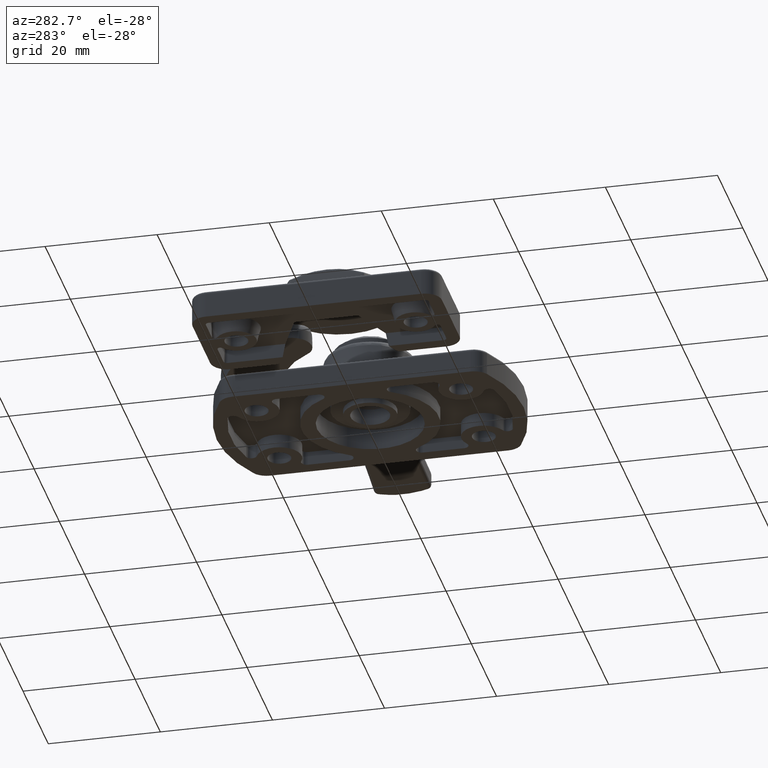
[diagram: clean part render]
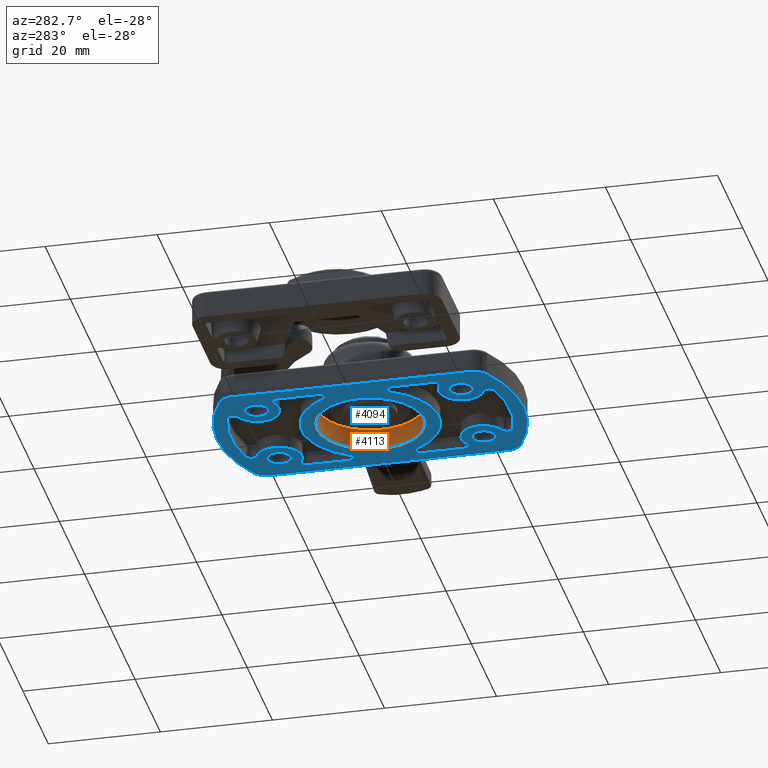
[diagram: same view with the hole feature highlighted: cylindrical wall and planar end face, labeled with their STEP entity ids]
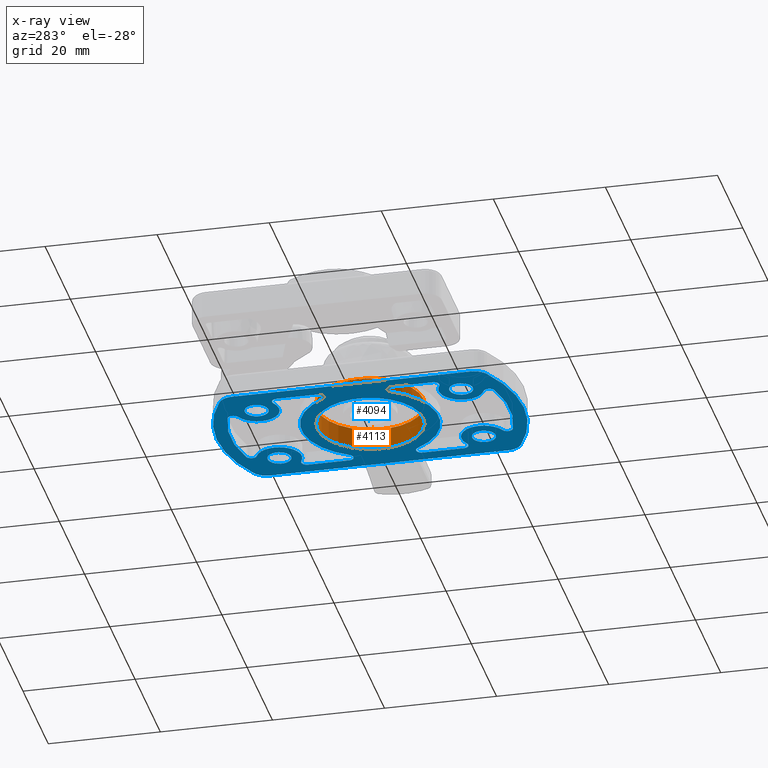
[diagram: x-ray of the same camera — body ghosted, the hole faces saturated]
A machine part, auxiliary view. The highlighted faces form one hole feature of diameter 19 mm: the cylindrical wall (entity #4113, orange) and its adjacent planar end face (entity #4094, blue) — they share a circular edge in the B-rep.
The next image is the same camera in x-ray (body ghosted, the hole faces saturated) — the bore reads through the body.
Wall:
#857=CYLINDRICAL_SURFACE('',#4442,9.5);
#945=FACE_BOUND('',#1296,.T.);
#1020=FACE_OUTER_BOUND('',#1295,.T.);
#1295=EDGE_LOOP('',(#2976));
#1296=EDGE_LOOP('',(#2977));
#1625=CIRCLE('',#4407,9.5);
#1642=CIRCLE('',#4443,9.5);
#1889=VERTEX_POINT('',#6166);
#1915=VERTEX_POINT('',#6255);
#2290=EDGE_CURVE('',#1889,#1889,#1625,.T.);
#2334=EDGE_CURVE('',#1915,#1915,#1642,.T.);
#2976=ORIENTED_EDGE('',*,*,#2290,.F.);
#2977=ORIENTED_EDGE('',*,*,#2334,.F.);
#4113=ADVANCED_FACE('',(#1020,#945),#857,.F.);
#4407=AXIS2_PLACEMENT_3D('',#6167,#4975,#4976);
#4442=AXIS2_PLACEMENT_3D('',#6254,#5072,#5073);
#4443=AXIS2_PLACEMENT_3D('',#6256,#5074,#5075);
#4975=DIRECTION('center_axis',(0.,0.,-1.));
#4976=DIRECTION('ref_axis',(1.,0.,0.));
#5072=DIRECTION('center_axis',(0.,0.,1.));
#5073=DIRECTION('ref_axis',(1.,0.,0.));
#5074=DIRECTION('center_axis',(0.,0.,1.));
#5075=DIRECTION('ref_axis',(1.,0.,0.));
#6166=CARTESIAN_POINT('',(-9.5,-1.16341445918999E-15,0.));
#6167=CARTESIAN_POINT('Origin',(1.11022302462516E-15,0.,0.));
#6254=CARTESIAN_POINT('Origin',(1.11022302462516E-15,0.,-1.9));
#6255=CARTESIAN_POINT('',(-9.5,-1.16341445918999E-15,-3.8));
#6256=CARTESIAN_POINT('Origin',(1.11022302462516E-15,0.,-3.8));
End face:
#446=PLANE('',#4378);
#503=LINE('',#6102,#675);
#504=LINE('',#6109,#676);
#505=LINE('',#6122,#677);
#506=LINE('',#6130,#678);
#507=LINE('',#6146,#679);
#508=LINE('',#6162,#680);
#675=VECTOR('',#4915,42.4904697731117);
#676=VECTOR('',#4922,42.4904697731241);
#677=VECTOR('',#4933,7.33863582406045);
#678=VECTOR('',#4940,7.33865921112837);
#679=VECTOR('',#4955,7.33860519076818);
#680=VECTOR('',#4970,7.33867283618418);
#938=FACE_BOUND('',#1270,.T.);
#939=FACE_BOUND('',#1271,.T.);
#940=FACE_BOUND('',#1272,.T.);
#941=FACE_BOUND('',#1273,.T.);
#942=FACE_BOUND('',#1274,.T.);
#943=FACE_BOUND('',#1275,.T.);
#944=FACE_BOUND('',#1276,.T.);
#1001=FACE_OUTER_BOUND('',#1269,.T.);
#1269=EDGE_LOOP('',(#2867,#2868,#2869,#2870,#2871,#2872,#2873,#2874));
#1270=EDGE_LOOP('',(#2875));
#1271=EDGE_LOOP('',(#2876));
#1272=EDGE_LOOP('',(#2877));
#1273=EDGE_LOOP('',(#2878));
#1274=EDGE_LOOP('',(#2879,#2880,#2881,#2882,#2883,#2884,#2885,#2886,#2887,
#2888,#2889,#2890));
#1275=EDGE_LOOP('',(#2891,#2892,#2893,#2894,#2895,#2896,#2897,#2898,#2899,
#2900,#2901,#2902));
#1276=EDGE_LOOP('',(#2903));
#1592=CIRCLE('',#4372,27.4);
#1595=CIRCLE('',#4376,3.000000486);
#1597=CIRCLE('',#4379,2.9999904);
#1598=CIRCLE('',#4380,3.00000879);
#1599=CIRCLE('',#4381,27.4);
#1600=CIRCLE('',#4382,2.999998704);
#1601=CIRCLE('',#4383,2.1);
#1602=CIRCLE('',#4384,2.1);
#1603=CIRCLE('',#4385,2.1);
#1604=CIRCLE('',#4386,2.1);
#1605=CIRCLE('',#4387,0.999999740999999);
#1606=CIRCLE('',#4388,1.000004735);
#1607=CIRCLE('',#4389,12.25);
#1608=CIRCLE('',#4390,0.999998045);
#1609=CIRCLE('',#4391,0.999999426999999);
#1610=CIRCLE('',#4392,4.);
#1611=CIRCLE('',#4393,1.);
#1612=CIRCLE('',#4394,24.9);
#1613=CIRCLE('',#4395,1.);
#1614=CIRCLE('',#4396,4.);
#1615=CIRCLE('',#4397,1.000004735);
#1616=CIRCLE('',#4398,1.00002627);
#1617=CIRCLE('',#4399,4.);
#1618=CIRCLE('',#4400,0.99999999999999);
#1619=CIRCLE('',#4401,24.9);
#1620=CIRCLE('',#4402,0.99999999999999);
#1621=CIRCLE('',#4403,4.);
#1622=CIRCLE('',#4404,0.999985021999997);
#1623=CIRCLE('',#4405,0.999998045);
#1624=CIRCLE('',#4406,12.25);
#1625=CIRCLE('',#4407,9.5);
#1849=VERTEX_POINT('',#6082);
#1850=VERTEX_POINT('',#6083);
#1854=VERTEX_POINT('',#6093);
#1856=VERTEX_POINT('',#6099);
#1857=VERTEX_POINT('',#6101);
#1858=VERTEX_POINT('',#6103);
#1859=VERTEX_POINT('',#6105);
#1860=VERTEX_POINT('',#6107);
#1861=VERTEX_POINT('',#6110);
#1862=VERTEX_POINT('',#6112);
#1863=VERTEX_POINT('',#6114);
#1864=VERTEX_POINT('',#6116);
#1865=VERTEX_POINT('',#6118);
#1866=VERTEX_POINT('',#6119);
#1867=VERTEX_POINT('',#6121);
#1868=VERTEX_POINT('',#6123);
#1869=VERTEX_POINT('',#6125);
#1870=VERTEX_POINT('',#6127);
#1871=VERTEX_POINT('',#6129);
#1872=VERTEX_POINT('',#6131);
#1873=VERTEX_POINT('',#6133);
#1874=VERTEX_POINT('',#6135);
#1875=VERTEX_POINT('',#6137);
#1876=VERTEX_POINT('',#6139);
#1877=VERTEX_POINT('',#6142);
#1878=VERTEX_POINT('',#6143);
#1879=VERTEX_POINT('',#6145);
#1880=VERTEX_POINT('',#6147);
#1881=VERTEX_POINT('',#6149);
#1882=VERTEX_POINT('',#6151);
#1883=VERTEX_POINT('',#6153);
#1884=VERTEX_POINT('',#6155);
#1885=VERTEX_POINT('',#6157);
#1886=VERTEX_POINT('',#6159);
#1887=VERTEX_POINT('',#6161);
#1888=VERTEX_POINT('',#6163);
#1889=VERTEX_POINT('',#6166);
#2248=EDGE_CURVE('',#1849,#1850,#1592,.T.);
#2253=EDGE_CURVE('',#1850,#1854,#1595,.T.);
#2256=EDGE_CURVE('',#1849,#1856,#1597,.T.);
#2257=EDGE_CURVE('',#1856,#1857,#503,.T.);
#2258=EDGE_CURVE('',#1857,#1858,#1598,.T.);
#2259=EDGE_CURVE('',#1858,#1859,#1599,.T.);
#2260=EDGE_CURVE('',#1859,#1860,#1600,.T.);
#2261=EDGE_CURVE('',#1860,#1854,#504,.T.);
#2262=EDGE_CURVE('',#1861,#1861,#1601,.T.);
#2263=EDGE_CURVE('',#1862,#1862,#1602,.T.);
#2264=EDGE_CURVE('',#1863,#1863,#1603,.T.);
#2265=EDGE_CURVE('',#1864,#1864,#1604,.T.);
#2266=EDGE_CURVE('',#1865,#1866,#1605,.T.);
#2267=EDGE_CURVE('',#1866,#1867,#505,.T.);
#2268=EDGE_CURVE('',#1867,#1868,#1606,.T.);
#2269=EDGE_CURVE('',#1868,#1869,#1607,.T.);
#2270=EDGE_CURVE('',#1869,#1870,#1608,.T.);
#2271=EDGE_CURVE('',#1870,#1871,#506,.T.);
#2272=EDGE_CURVE('',#1871,#1872,#1609,.T.);
#2273=EDGE_CURVE('',#1872,#1873,#1610,.T.);
#2274=EDGE_CURVE('',#1873,#1874,#1611,.T.);
#2275=EDGE_CURVE('',#1874,#1875,#1612,.T.);
#2276=EDGE_CURVE('',#1875,#1876,#1613,.T.);
#2277=EDGE_CURVE('',#1876,#1865,#1614,.T.);
#2278=EDGE_CURVE('',#1877,#1878,#1615,.T.);
#2279=EDGE_CURVE('',#1878,#1879,#507,.T.);
#2280=EDGE_CURVE('',#1879,#1880,#1616,.T.);
#2281=EDGE_CURVE('',#1880,#1881,#1617,.T.);
#2282=EDGE_CURVE('',#1881,#1882,#1618,.T.);
#2283=EDGE_CURVE('',#1882,#1883,#1619,.T.);
#2284=EDGE_CURVE('',#1883,#1884,#1620,.T.);
#2285=EDGE_CURVE('',#1884,#1885,#1621,.T.);
#2286=EDGE_CURVE('',#1885,#1886,#1622,.T.);
#2287=EDGE_CURVE('',#1886,#1887,#508,.T.);
#2288=EDGE_CURVE('',#1887,#1888,#1623,.T.);
#2289=EDGE_CURVE('',#1888,#1877,#1624,.T.);
#2290=EDGE_CURVE('',#1889,#1889,#1625,.T.);
#2867=ORIENTED_EDGE('',*,*,#2256,.T.);
#2868=ORIENTED_EDGE('',*,*,#2257,.T.);
#2869=ORIENTED_EDGE('',*,*,#2258,.T.);
#2870=ORIENTED_EDGE('',*,*,#2259,.T.);
#2871=ORIENTED_EDGE('',*,*,#2260,.T.);
#2872=ORIENTED_EDGE('',*,*,#2261,.T.);
#2873=ORIENTED_EDGE('',*,*,#2253,.F.);
#2874=ORIENTED_EDGE('',*,*,#2248,.F.);
#2875=ORIENTED_EDGE('',*,*,#2262,.T.);
#2876=ORIENTED_EDGE('',*,*,#2263,.T.);
#2877=ORIENTED_EDGE('',*,*,#2264,.T.);
#2878=ORIENTED_EDGE('',*,*,#2265,.T.);
#2879=ORIENTED_EDGE('',*,*,#2266,.T.);
#2880=ORIENTED_EDGE('',*,*,#2267,.T.);
#2881=ORIENTED_EDGE('',*,*,#2268,.T.);
#2882=ORIENTED_EDGE('',*,*,#2269,.T.);
#2883=ORIENTED_EDGE('',*,*,#2270,.T.);
#2884=ORIENTED_EDGE('',*,*,#2271,.T.);
#2885=ORIENTED_EDGE('',*,*,#2272,.T.);
#2886=ORIENTED_EDGE('',*,*,#2273,.T.);
#2887=ORIENTED_EDGE('',*,*,#2274,.T.);
#2888=ORIENTED_EDGE('',*,*,#2275,.T.);
#2889=ORIENTED_EDGE('',*,*,#2276,.T.);
#2890=ORIENTED_EDGE('',*,*,#2277,.T.);
#2891=ORIENTED_EDGE('',*,*,#2278,.T.);
#2892=ORIENTED_EDGE('',*,*,#2279,.T.);
#2893=ORIENTED_EDGE('',*,*,#2280,.T.);
#2894=ORIENTED_EDGE('',*,*,#2281,.T.);
#2895=ORIENTED_EDGE('',*,*,#2282,.T.);
#2896=ORIENTED_EDGE('',*,*,#2283,.T.);
#2897=ORIENTED_EDGE('',*,*,#2284,.T.);
#2898=ORIENTED_EDGE('',*,*,#2285,.T.);
#2899=ORIENTED_EDGE('',*,*,#2286,.T.);
#2900=ORIENTED_EDGE('',*,*,#2287,.T.);
#2901=ORIENTED_EDGE('',*,*,#2288,.T.);
#2902=ORIENTED_EDGE('',*,*,#2289,.T.);
#2903=ORIENTED_EDGE('',*,*,#2290,.T.);
#4094=ADVANCED_FACE('',(#1001,#938,#939,#940,#941,#942,#943,#944),#446,
 .T.);
#4372=AXIS2_PLACEMENT_3D('',#6084,#4896,#4897);
#4376=AXIS2_PLACEMENT_3D('',#6094,#4906,#4907);
#4378=AXIS2_PLACEMENT_3D('',#6098,#4911,#4912);
#4379=AXIS2_PLACEMENT_3D('',#6100,#4913,#4914);
#4380=AXIS2_PLACEMENT_3D('',#6104,#4916,#4917);
#4381=AXIS2_PLACEMENT_3D('',#6106,#4918,#4919);
#4382=AXIS2_PLACEMENT_3D('',#6108,#4920,#4921);
#4383=AXIS2_PLACEMENT_3D('',#6111,#4923,#4924);
#4384=AXIS2_PLACEMENT_3D('',#6113,#4925,#4926);
#4385=AXIS2_PLACEMENT_3D('',#6115,#4927,#4928);
#4386=AXIS2_PLACEMENT_3D('',#6117,#4929,#4930);
#4387=AXIS2_PLACEMENT_3D('',#6120,#4931,#4932);
#4388=AXIS2_PLACEMENT_3D('',#6124,#4934,#4935);
#4389=AXIS2_PLACEMENT_3D('',#6126,#4936,#4937);
#4390=AXIS2_PLACEMENT_3D('',#6128,#4938,#4939);
#4391=AXIS2_PLACEMENT_3D('',#6132,#4941,#4942);
#4392=AXIS2_PLACEMENT_3D('',#6134,#4943,#4944);
#4393=AXIS2_PLACEMENT_3D('',#6136,#4945,#4946);
#4394=AXIS2_PLACEMENT_3D('',#6138,#4947,#4948);
#4395=AXIS2_PLACEMENT_3D('',#6140,#4949,#4950);
#4396=AXIS2_PLACEMENT_3D('',#6141,#4951,#4952);
#4397=AXIS2_PLACEMENT_3D('',#6144,#4953,#4954);
#4398=AXIS2_PLACEMENT_3D('',#6148,#4956,#4957);
#4399=AXIS2_PLACEMENT_3D('',#6150,#4958,#4959);
#4400=AXIS2_PLACEMENT_3D('',#6152,#4960,#4961);
#4401=AXIS2_PLACEMENT_3D('',#6154,#4962,#4963);
#4402=AXIS2_PLACEMENT_3D('',#6156,#4964,#4965);
#4403=AXIS2_PLACEMENT_3D('',#6158,#4966,#4967);
#4404=AXIS2_PLACEMENT_3D('',#6160,#4968,#4969);
#4405=AXIS2_PLACEMENT_3D('',#6164,#4971,#4972);
#4406=AXIS2_PLACEMENT_3D('',#6165,#4973,#4974);
#4407=AXIS2_PLACEMENT_3D('',#6167,#4975,#4976);
#4896=DIRECTION('center_axis',(0.,0.,-1.));
#4897=DIRECTION('ref_axis',(1.,0.,0.));
#4906=DIRECTION('center_axis',(0.,0.,-1.));
#4907=DIRECTION('ref_axis',(1.,1.15648212996777E-15,0.));
#4911=DIRECTION('center_axis',(0.,0.,1.));
#4912=DIRECTION('ref_axis',(1.,0.,0.));
#4913=DIRECTION('center_axis',(0.,0.,1.));
#4914=DIRECTION('ref_axis',(1.,0.,0.));
#4915=DIRECTION('',(-1.,0.,0.));
#4916=DIRECTION('center_axis',(0.,0.,1.));
#4917=DIRECTION('ref_axis',(1.,0.,0.));
#4918=DIRECTION('center_axis',(0.,0.,1.));
#4919=DIRECTION('ref_axis',(1.,0.,0.));
#4920=DIRECTION('center_axis',(0.,0.,1.));
#4921=DIRECTION('ref_axis',(1.,0.,0.));
#4922=DIRECTION('',(1.,0.,0.));
#4923=DIRECTION('center_axis',(0.,0.,-1.));
#4924=DIRECTION('ref_axis',(1.,0.,0.));
#4925=DIRECTION('center_axis',(0.,0.,-1.));
#4926=DIRECTION('ref_axis',(1.,0.,0.));
#4927=DIRECTION('center_axis',(0.,0.,-1.));
#4928=DIRECTION('ref_axis',(1.,8.26058798084193E-16,0.));
#4929=DIRECTION('center_axis',(0.,0.,-1.));
#4930=DIRECTION('ref_axis',(1.,0.,0.));
#4931=DIRECTION('center_axis',(0.,0.,-1.));
#4932=DIRECTION('ref_axis',(1.,0.,0.));
#4933=DIRECTION('',(-1.,0.,0.));
#4934=DIRECTION('center_axis',(0.,0.,-1.));
#4935=DIRECTION('ref_axis',(1.,0.,0.));
#4936=DIRECTION('center_axis',(0.,0.,1.));
#4937=DIRECTION('ref_axis',(1.,0.,0.));
#4938=DIRECTION('center_axis',(0.,0.,-1.));
#4939=DIRECTION('ref_axis',(1.,1.73472686736783E-15,0.));
#4940=DIRECTION('',(1.,0.,0.));
#4941=DIRECTION('center_axis',(0.,0.,-1.));
#4942=DIRECTION('ref_axis',(1.,1.73472446997393E-15,0.));
#4943=DIRECTION('center_axis',(0.,0.,1.));
#4944=DIRECTION('ref_axis',(1.,0.,0.));
#4945=DIRECTION('center_axis',(0.,0.,-1.));
#4946=DIRECTION('ref_axis',(1.,-3.46944695195361E-15,0.));
#4947=DIRECTION('center_axis',(0.,0.,-1.));
#4948=DIRECTION('ref_axis',(1.,-4.44089209850063E-15,0.));
#4949=DIRECTION('center_axis',(0.,0.,-1.));
#4950=DIRECTION('ref_axis',(1.,8.67361737988403E-16,0.));
#4951=DIRECTION('center_axis',(0.,0.,1.));
#4952=DIRECTION('ref_axis',(1.,0.,0.));
#4953=DIRECTION('center_axis',(0.,0.,-1.));
#4954=DIRECTION('ref_axis',(1.,0.,0.));
#4955=DIRECTION('',(-1.,0.,0.));
#4956=DIRECTION('center_axis',(0.,0.,-1.));
#4957=DIRECTION('ref_axis',(1.,0.,0.));
#4958=DIRECTION('center_axis',(0.,0.,1.));
#4959=DIRECTION('ref_axis',(1.,0.,0.));
#4960=DIRECTION('center_axis',(0.,0.,-1.));
#4961=DIRECTION('ref_axis',(1.,1.73472347597682E-15,0.));
#4962=DIRECTION('center_axis',(0.,0.,-1.));
#4963=DIRECTION('ref_axis',(1.,2.66453525910037E-15,0.));
#4964=DIRECTION('center_axis',(0.,0.,-1.));
#4965=DIRECTION('ref_axis',(1.,0.,0.));
#4966=DIRECTION('center_axis',(0.,0.,1.));
#4967=DIRECTION('ref_axis',(1.,0.,0.));
#4968=DIRECTION('center_axis',(0.,0.,-1.));
#4969=DIRECTION('ref_axis',(1.,3.46949891810842E-15,0.));
#4970=DIRECTION('',(1.,0.,0.));
#4971=DIRECTION('center_axis',(0.,0.,-1.));
#4972=DIRECTION('ref_axis',(1.,-3.46945373473567E-15,0.));
#4973=DIRECTION('center_axis',(0.,0.,1.));
#4974=DIRECTION('ref_axis',(1.,0.,0.));
#4975=DIRECTION('center_axis',(0.,0.,-1.));
#4976=DIRECTION('ref_axis',(1.,0.,0.));
#6082=CARTESIAN_POINT('',(23.8573546038228,13.475408391136,0.));
#6083=CARTESIAN_POINT('',(23.8573537468265,-13.4754099082799,0.));
#6084=CARTESIAN_POINT('Origin',(0.,0.,0.));
#6093=CARTESIAN_POINT('',(21.2452346062224,-14.9999999998251,0.));
#6094=CARTESIAN_POINT('Origin',(21.245234476,-11.999999514,0.));
#6098=CARTESIAN_POINT('Origin',(0.,-15.,0.));
#6099=CARTESIAN_POINT('',(21.2452377673179,14.9999999998591,0.));
#6100=CARTESIAN_POINT('Origin',(21.245240363,12.0000096,0.));
#6101=CARTESIAN_POINT('',(-21.2452320057937,14.9999999998591,0.));
#6102=CARTESIAN_POINT('',(0.,14.9999999995783,0.));
#6103=CARTESIAN_POINT('',(-23.8573530408037,13.4754111586653,0.));
#6104=CARTESIAN_POINT('Origin',(-21.24522963,11.99999121,0.));
#6105=CARTESIAN_POINT('',(-23.8573538977819,-13.4754096420087,0.));
#6106=CARTESIAN_POINT('Origin',(0.,0.,0.));
#6107=CARTESIAN_POINT('',(-21.2452351669017,-14.9999999998251,0.));
#6108=CARTESIAN_POINT('Origin',(-21.245235517,-12.000001296,0.));
#6109=CARTESIAN_POINT('',(0.,-14.9999999994753,0.));
#6110=CARTESIAN_POINT('',(-20.35,-8.99999999999999,0.));
#6111=CARTESIAN_POINT('Origin',(-18.25,-9.,0.));
#6112=CARTESIAN_POINT('',(16.15,-9.00000000000001,0.));
#6113=CARTESIAN_POINT('Origin',(18.25,-9.,0.));
#6114=CARTESIAN_POINT('',(16.15,9.,-1.38777878078145E-16));
#6115=CARTESIAN_POINT('Origin',(18.25,9.,0.));
#6116=CARTESIAN_POINT('',(-20.35,9.,-1.38777878078145E-16));
#6117=CARTESIAN_POINT('Origin',(-18.25,9.,0.));
#6118=CARTESIAN_POINT('',(14.7858984454705,-11.0000001047913,0.));
#6119=CARTESIAN_POINT('',(13.9198732822919,-12.5000000003024,0.));
#6120=CARTESIAN_POINT('Origin',(13.91987343,-11.500000259,0.));
#6121=CARTESIAN_POINT('',(6.58123745823149,-12.5000000003002,0.));
#6122=CARTESIAN_POINT('',(0.,-12.5000000009073,0.));
#6123=CARTESIAN_POINT('',(6.08453706019287,-10.6320698248216,0.));
#6124=CARTESIAN_POINT('Origin',(6.581241097,-11.499995265,0.));
#6125=CARTESIAN_POINT('',(6.08452311903823,10.6320778034687,0.));
#6126=CARTESIAN_POINT('Origin',(0.,0.,0.));
#6127=CARTESIAN_POINT('',(6.58121443314716,12.4999999999329,0.));
#6128=CARTESIAN_POINT('Origin',(6.581215939,11.500001955,0.));
#6129=CARTESIAN_POINT('',(13.9198736442755,12.4999999999332,0.));
#6130=CARTESIAN_POINT('',(0.,12.4999999997997,0.));
#6131=CARTESIAN_POINT('',(14.7858985176259,11.0000002296897,0.));
#6132=CARTESIAN_POINT('Origin',(13.919873974,11.500000573,0.));
#6133=CARTESIAN_POINT('',(21.9251143391176,7.42090703419241,0.));
#6134=CARTESIAN_POINT('Origin',(18.25,9.,0.));
#6135=CARTESIAN_POINT('',(23.7997043434503,7.32011428629029,0.));
#6136=CARTESIAN_POINT('Origin',(22.843892924,7.026133793,0.));
#6137=CARTESIAN_POINT('',(23.7997043434566,-7.32011428629221,0.));
#6138=CARTESIAN_POINT('Origin',(0.,0.,0.));
#6139=CARTESIAN_POINT('',(21.9251143392114,-7.42090703445033,0.));
#6140=CARTESIAN_POINT('Origin',(22.843892924,-7.026133793,0.));
#6141=CARTESIAN_POINT('Origin',(18.25,-9.,0.));
#6142=CARTESIAN_POINT('',(-6.0845370597838,-10.6320698250557,0.));
#6143=CARTESIAN_POINT('',(-6.58123745723182,-12.5000000000527,0.));
#6144=CARTESIAN_POINT('Origin',(-6.581241097,-11.499995265,0.));
#6145=CARTESIAN_POINT('',(-13.919842648,-12.4999999999837,0.));
#6146=CARTESIAN_POINT('',(0.,-12.5000000001647,0.));
#6147=CARTESIAN_POINT('',(-14.7858923179831,-10.9999894924847,0.));
#6148=CARTESIAN_POINT('Origin',(-13.91982748,-11.49997373,0.));
#6149=CARTESIAN_POINT('',(-21.9251143391176,-7.42090703419241,0.));
#6150=CARTESIAN_POINT('Origin',(-18.25,-9.,0.));
#6151=CARTESIAN_POINT('',(-23.7997043434503,-7.32011428629028,0.));
#6152=CARTESIAN_POINT('Origin',(-22.843892924,-7.026133793,0.));
#6153=CARTESIAN_POINT('',(-23.7997043434566,7.32011428629221,0.));
#6154=CARTESIAN_POINT('Origin',(0.,0.,0.));
#6155=CARTESIAN_POINT('',(-21.9251143391956,7.42090703441355,0.));
#6156=CARTESIAN_POINT('Origin',(-22.843892924,7.026133793,0.));
#6157=CARTESIAN_POINT('',(-14.785901843316,11.000005991395,0.));
#6158=CARTESIAN_POINT('Origin',(-18.25,9.,0.));
#6159=CARTESIAN_POINT('',(-13.9198902770401,12.4999999994487,0.));
#6160=CARTESIAN_POINT('Origin',(-13.919898922,11.500014977,0.));
#6161=CARTESIAN_POINT('',(-6.58121744085589,12.4999999997938,0.));
#6162=CARTESIAN_POINT('',(0.,12.4999999993836,0.));
#6163=CARTESIAN_POINT('',(-6.0845231191465,10.6320778034067,0.));
#6164=CARTESIAN_POINT('Origin',(-6.581215939,11.500001955,0.));
#6165=CARTESIAN_POINT('Origin',(0.,0.,0.));
#6166=CARTESIAN_POINT('',(-9.5,-1.16341445918999E-15,0.));
#6167=CARTESIAN_POINT('Origin',(1.11022302462516E-15,0.,0.));